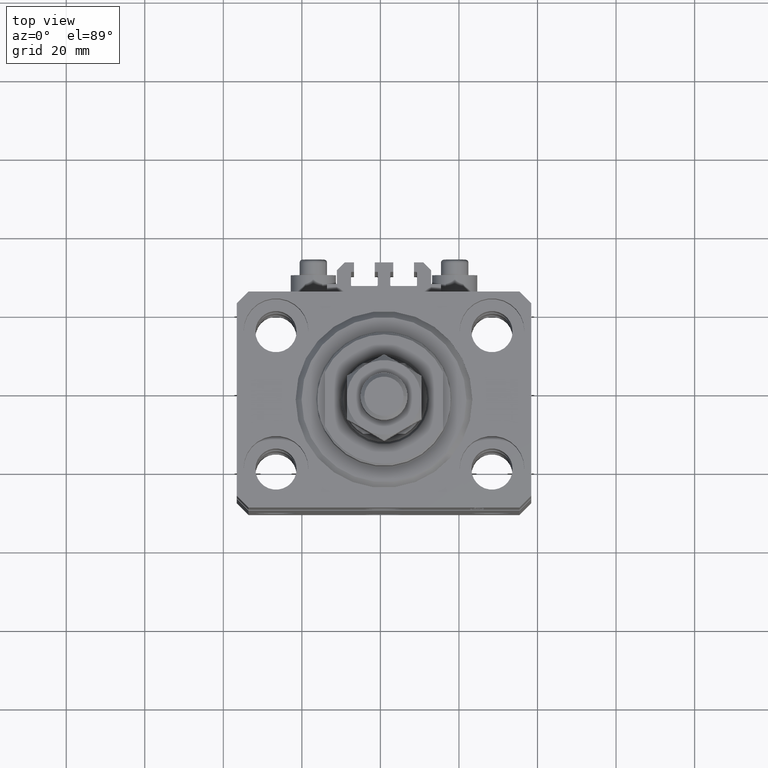
[diagram: clean part render]
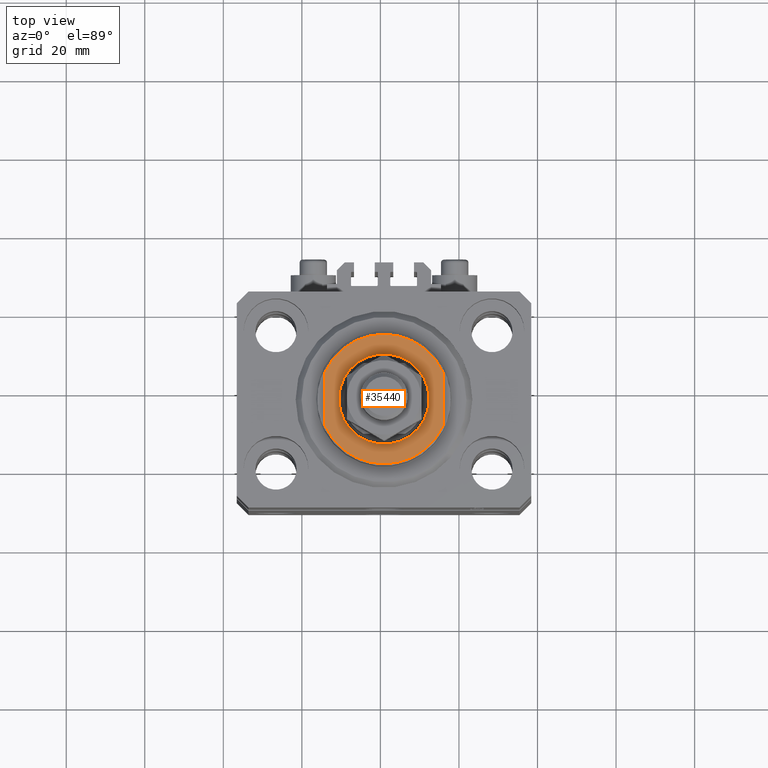
[diagram: same view with one face highlighted and labeled with its STEP entity id]
A machine part, top view. The second image highlights one B-rep face of the part: STEP entity #35440.
In plain terms, the highlighted planar face has unit normal (0, 0, 1).
Its self-contained STEP definition (entity closure, byte-faithful):
#1045 = CARTESIAN_POINT ( 'NONE',  ( 0.000000000000000000, 0.000000000000000000, -8.000000000000000000 ) ) ;
#1410 = FACE_OUTER_BOUND ( 'NONE', #38993, .T. ) ;
#1532 = DIRECTION ( 'NONE',  ( -0.000000000000000000, -0.000000000000000000, 1.000000000000000000 ) ) ;
#3380 = VERTEX_POINT ( 'NONE', #47281 ) ;
#3727 = DIRECTION ( 'NONE',  ( 0.000000000000000000, -1.000000000000000000, -0.000000000000000000 ) ) ;
#3803 = VERTEX_POINT ( 'NONE', #17438 ) ;
#3898 = DIRECTION ( 'NONE',  ( -0.000000000000000000, -0.000000000000000000, 1.000000000000000000 ) ) ;
#4182 = PLANE ( 'NONE',  #48341 ) ;
#4647 = CIRCLE ( 'NONE', #46960, 16.50000000000000000 ) ;
#5573 = DIRECTION ( 'NONE',  ( -1.000000000000000000, 0.000000000000000000, 0.000000000000000000 ) ) ;
#7172 = EDGE_CURVE ( 'NONE', #8344, #43977, #36130, .T. ) ;
#7458 = LINE ( 'NONE', #22726, #42037 ) ;
#8296 = CIRCLE ( 'NONE', #25093, 16.50000000000000000 ) ;
#8344 = VERTEX_POINT ( 'NONE', #18819 ) ;
#8849 = CARTESIAN_POINT ( 'NONE',  ( 0.000000000000000000, 0.000000000000000000, -8.000000000000000000 ) ) ;
#9005 = VECTOR ( 'NONE', #35569, 1000.000000000000000 ) ;
#10300 = CARTESIAN_POINT ( 'NONE',  ( 14.99999999999999645, -6.873863542433765517, -8.000000000000000000 ) ) ;
#11103 = EDGE_LOOP ( 'NONE', ( #46980, #24724 ) ) ;
#11629 = EDGE_CURVE ( 'NONE', #3380, #3803, #21307, .T. ) ;
#13372 = AXIS2_PLACEMENT_3D ( 'NONE', #8849, #3898, #19135 ) ;
#13579 = EDGE_CURVE ( 'NONE', #33778, #3803, #8296, .T. ) ;
#14056 = CARTESIAN_POINT ( 'NONE',  ( 14.99999999999999645, 6.873863542433765517, -8.000000000000000000 ) ) ;
#14156 = CIRCLE ( 'NONE', #13372, 11.50000000000000355 ) ;
#16151 = AXIS2_PLACEMENT_3D ( 'NONE', #1045, #1532, #20041 ) ;
#16648 = FACE_BOUND ( 'NONE', #11103, .T. ) ;
#16810 = CARTESIAN_POINT ( 'NONE',  ( 0.000000000000000000, 0.000000000000000000, -8.000000000000000000 ) ) ;
#17438 = CARTESIAN_POINT ( 'NONE',  ( -14.99999999999999645, -6.873863542433765517, -8.000000000000000000 ) ) ;
#18819 = CARTESIAN_POINT ( 'NONE',  ( -11.50000000000000355, 0.000000000000000000, -8.000000000000000000 ) ) ;
#19024 = CARTESIAN_POINT ( 'NONE',  ( 0.000000000000000000, 0.000000000000000000, -8.000000000000000000 ) ) ;
#19135 = DIRECTION ( 'NONE',  ( -1.000000000000000000, 0.000000000000000000, 0.000000000000000000 ) ) ;
#20041 = DIRECTION ( 'NONE',  ( -1.000000000000000000, 0.000000000000000000, 0.000000000000000000 ) ) ;
#21307 = LINE ( 'NONE', #36320, #9005 ) ;
#22726 = CARTESIAN_POINT ( 'NONE',  ( 15.00000000000000000, -42.42640687119285303, -8.000000000000000000 ) ) ;
#23915 = DIRECTION ( 'NONE',  ( 0.000000000000000000, 0.000000000000000000, -1.000000000000000000 ) ) ;
#24724 = ORIENTED_EDGE ( 'NONE', *, *, #44104, .T. ) ;
#25093 = AXIS2_PLACEMENT_3D ( 'NONE', #19024, #27521, #32013 ) ;
#27314 = ORIENTED_EDGE ( 'NONE', *, *, #38173, .T. ) ;
#27521 = DIRECTION ( 'NONE',  ( 0.000000000000000000, 0.000000000000000000, -1.000000000000000000 ) ) ;
#30943 = DIRECTION ( 'NONE',  ( -1.000000000000000000, 0.000000000000000000, -0.000000000000000000 ) ) ;
#32013 = DIRECTION ( 'NONE',  ( -1.000000000000000000, 0.000000000000000000, 0.000000000000000000 ) ) ;
#32927 = CARTESIAN_POINT ( 'NONE',  ( 11.50000000000000355, 1.408343819019456570E-15, -8.000000000000000000 ) ) ;
#33778 = VERTEX_POINT ( 'NONE', #10300 ) ;
#35440 = ADVANCED_FACE ( 'NONE', ( #16648, #1410 ), #4182, .T. ) ;
#35569 = DIRECTION ( 'NONE',  ( -0.000000000000000000, -1.000000000000000000, -0.000000000000000000 ) ) ;
#36130 = CIRCLE ( 'NONE', #16151, 11.50000000000000355 ) ;
#36320 = CARTESIAN_POINT ( 'NONE',  ( -15.00000000000000000, -42.42640687119285303, -8.000000000000000000 ) ) ;
#38173 = EDGE_CURVE ( 'NONE', #46546, #33778, #7458, .T. ) ;
#38993 = EDGE_LOOP ( 'NONE', ( #42208, #27314, #44406, #45738 ) ) ;
#39836 = DIRECTION ( 'NONE',  ( 0.000000000000000000, 0.000000000000000000, -1.000000000000000000 ) ) ;
#42037 = VECTOR ( 'NONE', #3727, 1000.000000000000000 ) ;
#42208 = ORIENTED_EDGE ( 'NONE', *, *, #45636, .T. ) ;
#42699 = CARTESIAN_POINT ( 'NONE',  ( 0.000000000000000000, 0.000000000000000000, -8.000000000000000000 ) ) ;
#43977 = VERTEX_POINT ( 'NONE', #32927 ) ;
#44104 = EDGE_CURVE ( 'NONE', #43977, #8344, #14156, .T. ) ;
#44406 = ORIENTED_EDGE ( 'NONE', *, *, #13579, .T. ) ;
#45636 = EDGE_CURVE ( 'NONE', #3380, #46546, #4647, .T. ) ;
#45738 = ORIENTED_EDGE ( 'NONE', *, *, #11629, .F. ) ;
#46546 = VERTEX_POINT ( 'NONE', #14056 ) ;
#46960 = AXIS2_PLACEMENT_3D ( 'NONE', #16810, #39836, #5573 ) ;
#46980 = ORIENTED_EDGE ( 'NONE', *, *, #7172, .T. ) ;
#47281 = CARTESIAN_POINT ( 'NONE',  ( -14.99999999999999645, 6.873863542433765517, -8.000000000000000000 ) ) ;
#48341 = AXIS2_PLACEMENT_3D ( 'NONE', #42699, #23915, #30943 ) ;